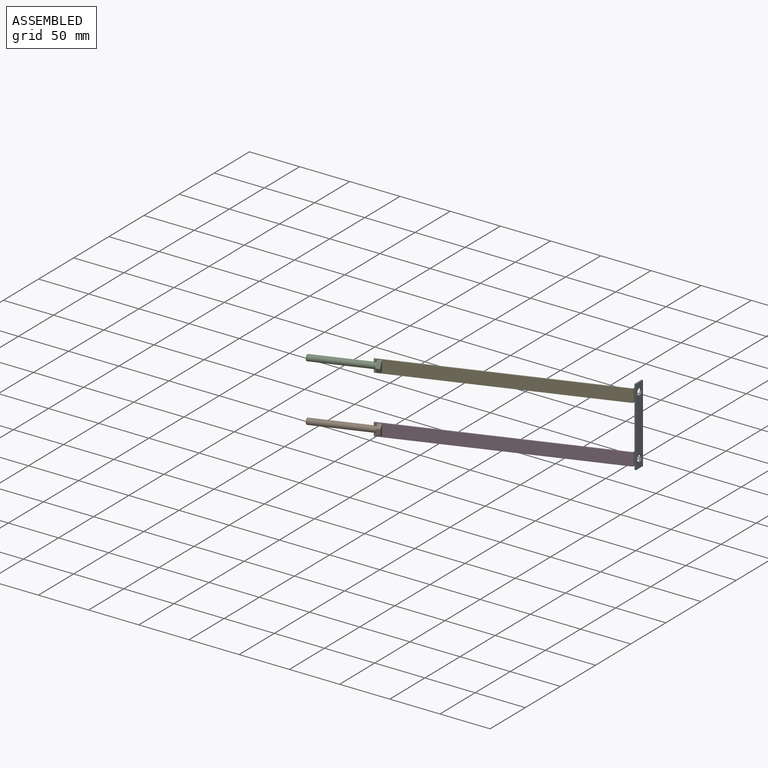
[diagram: assembled view]
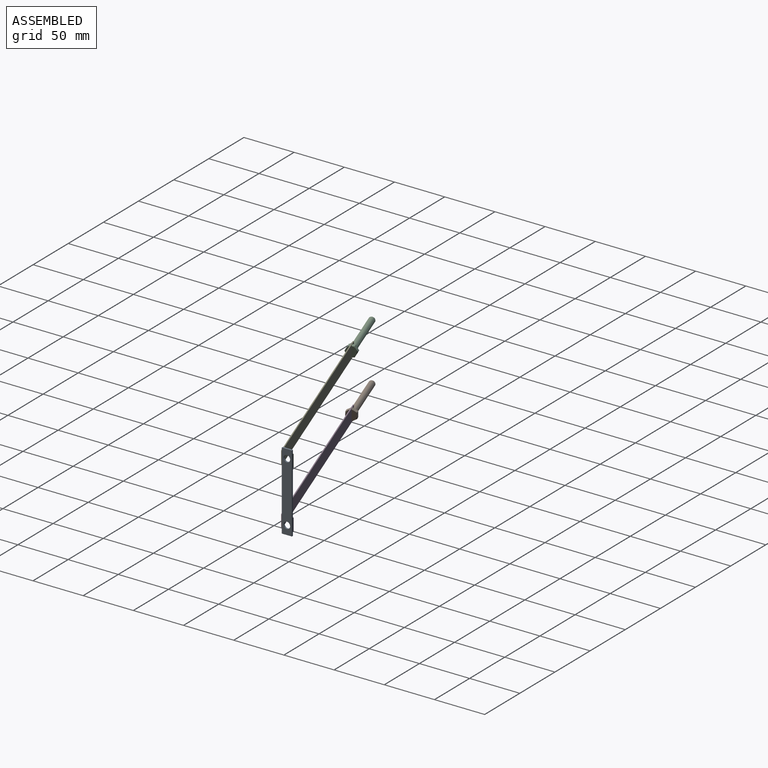
[diagram: assembled view, second angle]
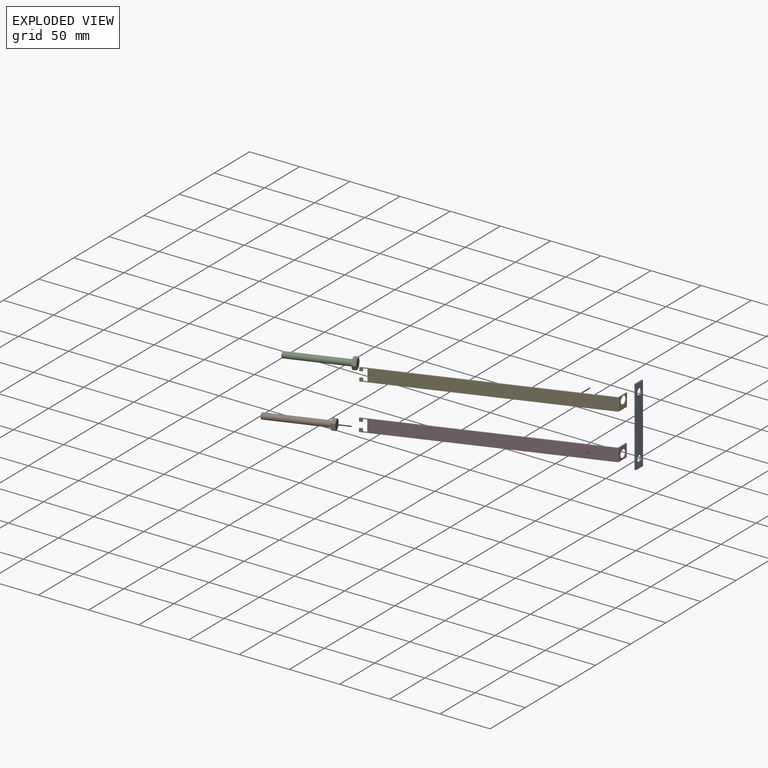
[diagram: exploded view]
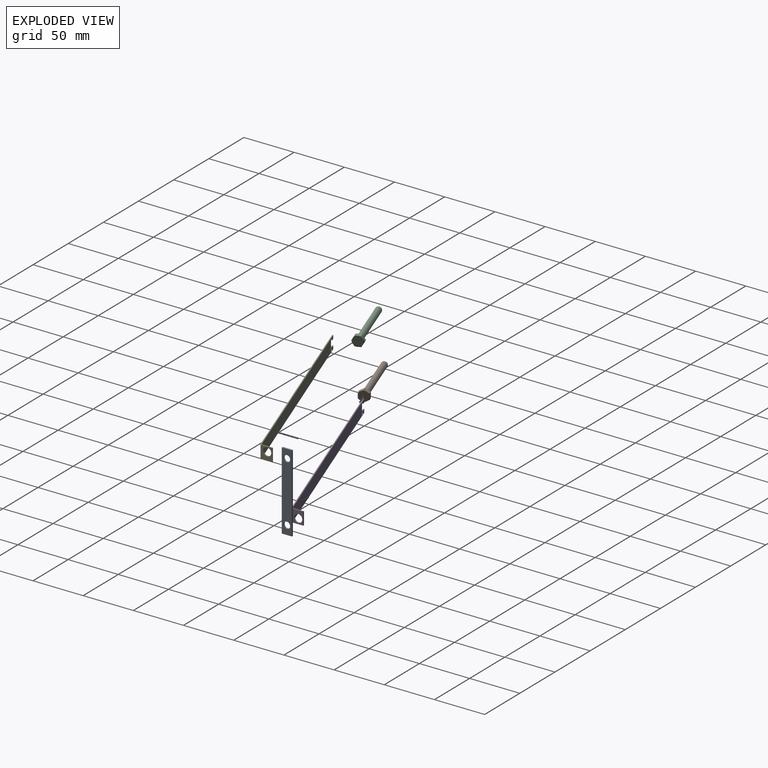
[diagram: exploded view, second angle]
ASSEMBLY  parts=5 mates=8
PART A: 8 faces, bbox 1.5x10x77.5 mm
  f0: plane 77.5x10mm, normal (1,0,0), area 708.6mm2, adj f2,f3,f4,f5,f6,f7
  f1: plane 77.5x10mm, normal (-1,0,0), area 708.6mm2, adj f2,f3,f4,f5,f6,f7
  f2: plane 77.5x1.5mm, normal (0,1,0), area 116.2mm2, adj f0,f1,f3,f5
  f3: plane 10x1.5mm, normal (0,0,1), area 15mm2, adj f0,f1,f2,f4
  f4: plane 77.5x1.5mm, normal (0,-1,0), area 116.2mm2, adj f0,f1,f3,f5
  f5: plane 10x1.5mm, normal (0,0,-1), area 15mm2, adj f0,f1,f2,f4
  f6: cylinder r=3.25mm len=6.5mm, axis (-1,0,0), area 30.6mm2, adj f0,f1
  f7: cylinder r=3.25mm len=6.5mm, axis (-1,0,0), area 30.6mm2, adj f0,f1
PART B: 17 faces, bbox 64.5x12x12 mm
  f0: plane 5.47x4.48mm, normal (0,0.5,0.87), area 22.2mm2, adj f1,f5,f6,f14,f15
  f1: plane 5.47x4.48mm, normal (0,-0.5,0.87), area 22.2mm2, adj f0,f2,f6,f13,f14
  f2: plane 6.25x4.48mm, normal (0,-1,0), area 22.2mm2, adj f1,f3,f6,f12,f13
  f3: plane 5.47x4.48mm, normal (0,-0.5,-0.87), area 22.2mm2, adj f2,f4,f6,f11,f12
  f4: plane 5.47x4.48mm, normal (0,0.5,-0.87), area 22.2mm2, adj f3,f5,f6,f10,f11
  f5: plane 6.25x4.48mm, normal (0,1,0), area 22.2mm2, adj f0,f4,f6,f10,f15
  f6: plane 11.55x10mm, normal (1,0,0), area 58.3mm2, adj f0,f1,f2,f3,f4,f5,f7
  f7: cylinder r=3mm len=59.45mm, axis (-1,0,0), area 1120.5mm2, adj f6,f8
  f8: cone r=2.45mm half-angle=45deg, axis (-1,0,0), area 13.4mm2, adj f7,f9
  f9: plane 4.89x4.89mm, normal (1,0,0), area 18.8mm2, adj f8
  f10: cone r=5mm half-angle=60deg, axis (1,0,0), area 2.5mm2, adj f4,f5,f16
  f11: cone r=5mm half-angle=60deg, axis (1,0,0), area 2.5mm2, adj f3,f4,f16
  f12: cone r=5mm half-angle=60deg, axis (1,0,0), area 2.5mm2, adj f2,f3,f16
  f13: cone r=5mm half-angle=60deg, axis (1,0,0), area 2.5mm2, adj f1,f2,f16
  f14: cone r=5mm half-angle=60deg, axis (1,0,0), area 2.5mm2, adj f0,f1,f16
  f15: cone r=5mm half-angle=60deg, axis (1,0,0), area 2.5mm2, adj f0,f5,f16
  f16: plane 10x10mm, normal (-1,0,0), area 78.5mm2, adj f10,f11,f12,f13,f14,f15
PART C: same geometry as B
PART D: 23 faces, bbox 11.6x223.7x12.7 mm
  f0: plane 3.35x1mm, normal (0,1,0), area 3.4mm2, adj f2,f3,f5,f16
  f1: plane 218.59x1mm, normal (0,0,1), area 218.6mm2, adj f2,f3,f4,f7
  f2: plane 218.59x12.7mm, normal (-1,0,0), area 2712mm2, adj f0,f1,f4,f5,f9,f16,f17,f18
  f3: plane 218.59x12.7mm, normal (1,0,0), area 2712mm2, adj f0,f1,f4,f5,f8,f16,f17,f18
  f4: plane 3.35x1mm, normal (0,1,0), area 3.3mm2, adj f1,f2,f3,f22
  f5: plane 218.59x1mm, normal (0,0,-1), area 218.6mm2, adj f0,f2,f3,f6
  f6: plane 1.41x1.33mm, normal (0,0,-1), area 1.2mm2, adj f5,f8,f9,f11
  f7: plane 1.41x1.33mm, normal (0,0,1), area 1.2mm2, adj f1,f8,f9,f10
  f8: cylinder r=1.5mm len=12.7mm, axis (0,0,1), area 23.4mm2, adj f3,f6,f7,f12
  f9: cylinder r=0.5mm len=12.7mm, axis (0,0,1), area 7.8mm2, adj f2,f6,f7,f13
  f10: plane 10.65x4.59mm, normal (0,0,1), area 10.9mm2, adj f7,f12,f13,f14
  f11: plane 10.65x4.59mm, normal (0,0,-1), area 10.9mm2, adj f6,f12,f13,f14
  f12: plane 12.7x10.31mm, normal (0.33,-0.94,0), area 88.7mm2, adj f8,f10,f11,f14,f15
  f13: plane 12.7x10.31mm, normal (-0.33,0.94,0), area 88.7mm2, adj f9,f10,f11,f14,f15
  f14: plane 12.7x0.94mm, normal (-0.94,-0.33,0), area 12.7mm2, adj f10,f11,f12,f13
  f15: cylinder r=4mm len=8mm, axis (0.33,-0.94,0), area 25.1mm2, adj f12,f13
  f16: plane 3x1mm, normal (0,0,1), area 3mm2, adj f0,f2,f3,f17
  f17: plane 2.75x1mm, normal (0,-1,0), area 2.8mm2, adj f2,f3,f16,f18
  f18: plane 4x1mm, normal (0,0,1), area 4mm2, adj f2,f3,f17,f19
  f19: plane 11.5x1mm, normal (0,1,0), area 11.5mm2, adj f2,f3,f18,f20
  f20: plane 4x1mm, normal (0,0,-1), area 4mm2, adj f2,f3,f19,f21
  f21: plane 2.75x1mm, normal (0,-1,0), area 2.8mm2, adj f2,f3,f20,f22
  f22: plane 3x1mm, normal (0,0,-1), area 3mm2, adj f2,f3,f4,f21
PART E: 23 faces, bbox 11.6x223.7x12.7 mm
  f0: plane 3.35x1mm, normal (0,1,0), area 3.4mm2, adj f2,f3,f5,f16
  f1: plane 218.59x1mm, normal (0,0,1), area 218.6mm2, adj f2,f3,f4,f7
  f2: plane 218.59x12.7mm, normal (-1,0,0), area 2712mm2, adj f0,f1,f4,f5,f9,f16,f17,f18
  f3: plane 218.59x12.7mm, normal (1,0,0), area 2712mm2, adj f0,f1,f4,f5,f8,f16,f17,f18
  f4: plane 3.35x1mm, normal (0,1,0), area 3.3mm2, adj f1,f2,f3,f22
  f5: plane 218.59x1mm, normal (0,0,-1), area 218.6mm2, adj f0,f2,f3,f6
  f6: plane 1.41x1.33mm, normal (0,0,-1), area 1.2mm2, adj f5,f8,f9,f11
  f7: plane 1.41x1.33mm, normal (0,0,1), area 1.2mm2, adj f1,f8,f9,f10
  f8: cylinder r=1.5mm len=12.7mm, axis (0,0,1), area 23.4mm2, adj f3,f6,f7,f12
  f9: cylinder r=0.5mm len=12.7mm, axis (0,0,1), area 7.8mm2, adj f2,f6,f7,f13
  f10: plane 10.65x4.59mm, normal (0,0,1), area 10.9mm2, adj f7,f12,f13,f14
  f11: plane 10.65x4.59mm, normal (0,0,-1), area 10.9mm2, adj f6,f12,f13,f14
  f12: plane 12.7x10.31mm, normal (0.33,-0.94,0), area 88.7mm2, adj f8,f10,f11,f14,f15
  f13: plane 12.7x10.31mm, normal (-0.33,0.94,0), area 88.7mm2, adj f9,f10,f11,f14,f15
  f14: plane 12.7x0.94mm, normal (-0.94,-0.33,0), area 12.7mm2, adj f10,f11,f12,f13
  f15: cylinder r=4mm len=8mm, axis (0.33,-0.94,0), area 25.1mm2, adj f12,f13
  f16: plane 3x1mm, normal (0,0,1), area 3mm2, adj f0,f2,f3,f17
  f17: plane 2.75x1mm, normal (0,-1,0), area 2.8mm2, adj f2,f3,f16,f18
  f18: plane 4x1mm, normal (0,0,1), area 4mm2, adj f2,f3,f17,f19
  f19: plane 11.5x1mm, normal (0,1,0), area 11.5mm2, adj f2,f3,f18,f20
  f20: plane 4x1mm, normal (0,0,-1), area 4mm2, adj f2,f3,f19,f21
  f21: plane 2.75x1mm, normal (0,-1,0), area 2.8mm2, adj f2,f3,f20,f22
  f22: plane 3x1mm, normal (0,0,-1), area 3mm2, adj f2,f3,f4,f21
PLACE A t=(-34.92,-25.48,-1.4)mm fixed
PLACE B rot(axis=(0,0,-1),160.5deg) t=(-235.54,-102.99,-30.25)mm
PLACE C rot(axis=(0.12,-0.7,-0.7),166.2deg) t=(-235.54,-102.99,27.05)mm
PLACE D rot(axis=(-0.82,0.58,0),180deg) t=(-34.59,-32.36,-23.9)mm
PLACE E rot(axis=(-0.82,0.58,0),180deg) t=(-34.59,-32.36,33.4)mm
MATE cylindrical A.f7 <-> D.f15  axis (-1,0,0) through (-34.92,-25.48,-31.4)mm
MATE planar D.f12 <-> A.f1  axis (1,0,0) through (-34.92,-20.48,-23.9)mm
MATE fastened C.f7 <-> E.f19  axis (0.94,0.33,0) through (-235.54,-102.99,27.05)mm
MATE parallel E.f14 <-> A.f2  axis (0,1,0) through (-35.42,-20.48,27.05)mm
MATE planar E.f17 <-> C.f6  axis (0.94,0.33,0) through (-239.14,-104.8,31.42)mm
MATE parallel D.f14 <-> A.f2  axis (0,1,0) through (-35.42,-20.48,-30.25)mm
MATE fastened B.f7 <-> D.f19  axis (0.94,0.33,0) through (-235.54,-102.99,-30.25)mm
MATE revolute E.f15 <-> A.f6  axis (1,0,0) through (-34.92,-25.48,28.6)mm
